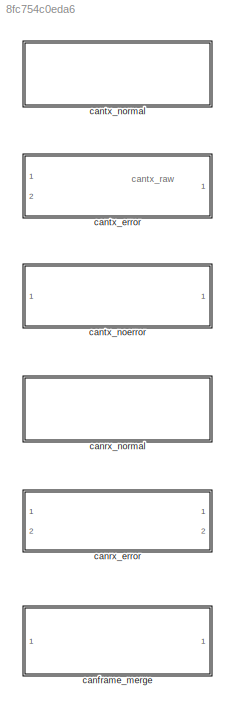
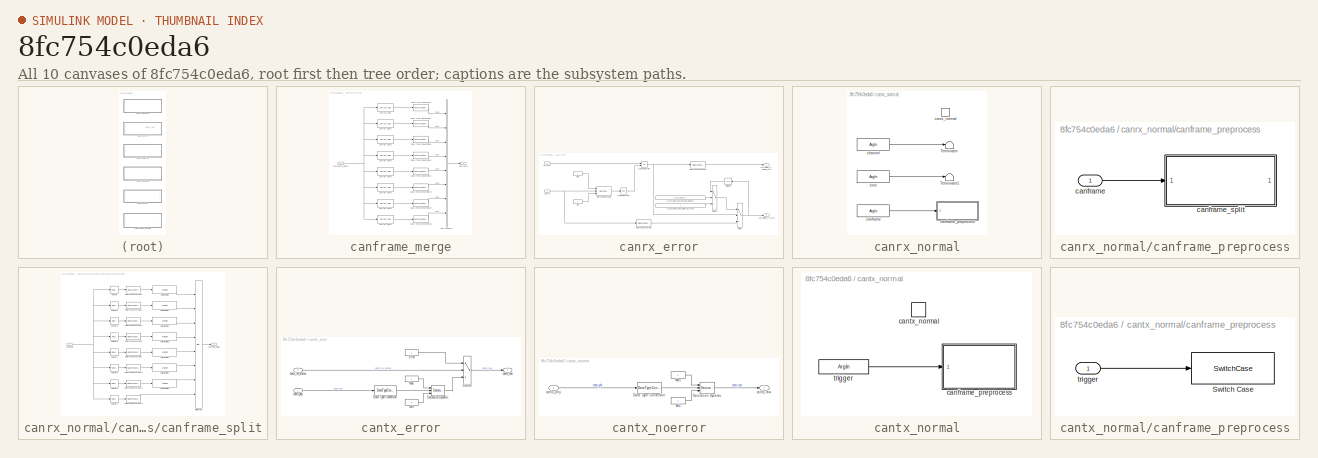
[diagram: thumbnail index - all 10 canvases of the model, root first then tree order]
MODEL slx_8fc754c0eda6
KIND model
CONFIG AbsTol = auto
CONFIG EnableMultiTasking = off
CONFIG FixedStep = auto
CONFIG MaxStep = auto
CONFIG MinStep = auto
CONFIG RelTol = 1e-3
CONFIG SampleTimeConstraint = Unconstrained
CONFIG SolverName = VariableStepAuto
CONFIG StartTime = 0.0
CONFIG StopTime = 10.0
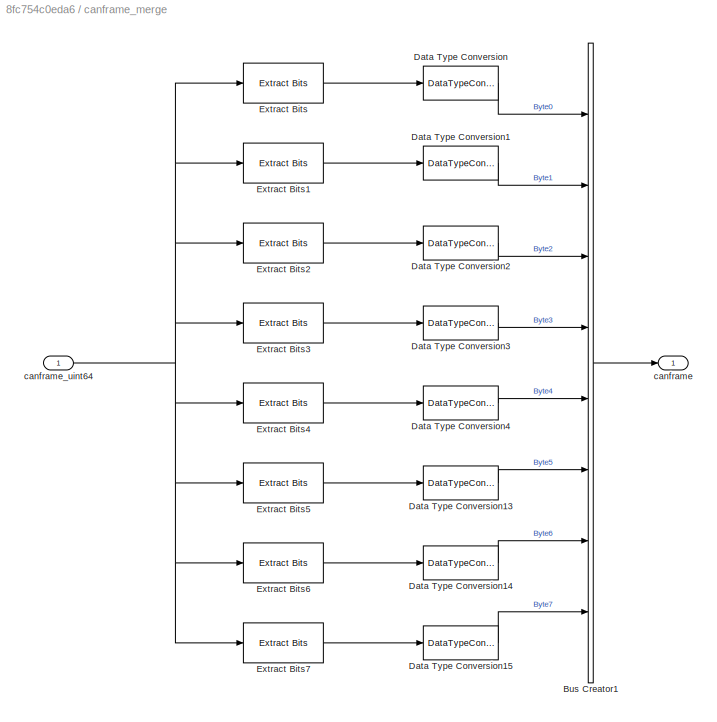
BLOCK [SubSystem] canframe_merge
  Ports = [1, 1]
  RTWSystemCode = Reusable function
  RequestExecContextInheritance = off
BLOCK [BusCreator] canframe_merge/Bus Creator1
  DisplayOption = bar
  InheritFromInputs = on
  Inputs = Byte0,Byte1,Byte2,Byte3,Byte4,Byte5,Byte6,Byte7
  NonVirtualBus = on
  OutDataTypeStr = Bus: canframe
  Ports = [8, 1]
BLOCK [DataTypeConversion] canframe_merge/Data Type Conversion
  ConvertRealWorld = Stored Integer (SI)
  OutDataTypeStr = uint8
  RndMeth = Floor
  SaturateOnIntegerOverflow = off
BLOCK [DataTypeConversion] canframe_merge/Data Type Conversion1
  ConvertRealWorld = Stored Integer (SI)
  OutDataTypeStr = uint8
  RndMeth = Floor
  SaturateOnIntegerOverflow = off
BLOCK [DataTypeConversion] canframe_merge/Data Type Conversion13
  ConvertRealWorld = Stored Integer (SI)
  OutDataTypeStr = uint8
  RndMeth = Floor
  SaturateOnIntegerOverflow = off
BLOCK [DataTypeConversion] canframe_merge/Data Type Conversion14
  ConvertRealWorld = Stored Integer (SI)
  OutDataTypeStr = uint8
  RndMeth = Floor
  SaturateOnIntegerOverflow = off
BLOCK [DataTypeConversion] canframe_merge/Data Type Conversion15
  ConvertRealWorld = Stored Integer (SI)
  OutDataTypeStr = uint8
  RndMeth = Floor
  SaturateOnIntegerOverflow = off
BLOCK [DataTypeConversion] canframe_merge/Data Type Conversion2
  ConvertRealWorld = Stored Integer (SI)
  OutDataTypeStr = uint8
  RndMeth = Floor
  SaturateOnIntegerOverflow = off
BLOCK [DataTypeConversion] canframe_merge/Data Type Conversion3
  ConvertRealWorld = Stored Integer (SI)
  OutDataTypeStr = uint8
  RndMeth = Floor
  SaturateOnIntegerOverflow = off
BLOCK [DataTypeConversion] canframe_merge/Data Type Conversion4
  ConvertRealWorld = Stored Integer (SI)
  OutDataTypeStr = uint8
  RndMeth = Floor
  SaturateOnIntegerOverflow = off
BLOCK [Reference] canframe_merge/Extract Bits  REF=simulink/Logic and Bit
Operations/Extract Bits
  Ports = [1, 1]
  SourceBlock = simulink/Logic and Bit\nOperations/Extract Bits
  SourceProductBaseCode = SL
  SourceType = Extract Bits
BLOCK [Reference] canframe_merge/Extract Bits1  REF=simulink/Logic and Bit
Operations/Extract Bits
  Ports = [1, 1]
  SourceBlock = simulink/Logic and Bit\nOperations/Extract Bits
  SourceProductBaseCode = SL
  SourceType = Extract Bits
BLOCK [Reference] canframe_merge/Extract Bits2  REF=simulink/Logic and Bit
Operations/Extract Bits
  Ports = [1, 1]
  SourceBlock = simulink/Logic and Bit\nOperations/Extract Bits
  SourceProductBaseCode = SL
  SourceType = Extract Bits
BLOCK [Reference] canframe_merge/Extract Bits3  REF=simulink/Logic and Bit
Operations/Extract Bits
  Ports = [1, 1]
  SourceBlock = simulink/Logic and Bit\nOperations/Extract Bits
  SourceProductBaseCode = SL
  SourceType = Extract Bits
BLOCK [Reference] canframe_merge/Extract Bits4  REF=simulink/Logic and Bit
Operations/Extract Bits
  Ports = [1, 1]
  SourceBlock = simulink/Logic and Bit\nOperations/Extract Bits
  SourceProductBaseCode = SL
  SourceType = Extract Bits
BLOCK [Reference] canframe_merge/Extract Bits5  REF=simulink/Logic and Bit
Operations/Extract Bits
  Ports = [1, 1]
  SourceBlock = simulink/Logic and Bit\nOperations/Extract Bits
  SourceProductBaseCode = SL
  SourceType = Extract Bits
BLOCK [Reference] canframe_merge/Extract Bits6  REF=simulink/Logic and Bit
Operations/Extract Bits
  Ports = [1, 1]
  SourceBlock = simulink/Logic and Bit\nOperations/Extract Bits
  SourceProductBaseCode = SL
  SourceType = Extract Bits
BLOCK [Reference] canframe_merge/Extract Bits7  REF=simulink/Logic and Bit
Operations/Extract Bits
  Ports = [1, 1]
  SourceBlock = simulink/Logic and Bit\nOperations/Extract Bits
  SourceProductBaseCode = SL
  SourceType = Extract Bits
BLOCK [Outport] canframe_merge/canframe
BLOCK [Inport] canframe_merge/canframe_uint64
BLOCK [SubSystem] canrx_error
  Ports = [2, 2]
  RequestExecContextInheritance = off
BLOCK [DataTypeConversion] canrx_error/Data Type Conversion
  ConvertRealWorld = Stored Integer (SI)
  RndMeth = Floor
  SaturateOnIntegerOverflow = off
BLOCK [DataTypeConversion] canrx_error/Data Type Conversion1
  ConvertRealWorld = Stored Integer (SI)
  RndMeth = Floor
  SaturateOnIntegerOverflow = off
BLOCK [Reference] canrx_error/Interval Test Dynamic  REF=simulink/Logic and Bit
Operations/Interval Test
Dynamic
  Ports = [3, 1]
  SourceBlock = simulink/Logic and Bit\nOperations/Interval Test\nDynamic
  SourceProductBaseCode = SL
  SourceType = Interval Test Dynamic
BLOCK [Constant] canrx_error/K_CAN_GMLAN_RX_DEFAULT_xxxx
  OutDataTypeStr = Inherit: Inherit via back propagation
BLOCK [Constant] canrx_error/K_CAN_GMLAN_RX_INVALID_SELECT
  OutDataTypeStr = Inherit: Inherit via back propagation
  Value = K_CAN_GMLAN_RX_INVALID_SELECT
BLOCK [Logic] canrx_error/Logical Operator
  AllPortsSameDT = off
  Operator = OR
  OutDataTypeStr = boolean
  Ports = [2, 1]
BLOCK [Logic] canrx_error/Logical Operator1
  AllPortsSameDT = off
  Operator = NOT
  OutDataTypeStr = boolean
  Ports = [1, 1]
BLOCK [Constant] canrx_error/Max
  OutDataTypeStr = Inherit: Inherit via back propagation
BLOCK [Constant] canrx_error/Min
  OutDataTypeStr = Inherit: Inherit via back propagation
BLOCK [Switch] canrx_error/Switch
  Criteria = u2 > Threshold
  InputSameDT = off
  SaturateOnIntegerOverflow = off
BLOCK [Switch] canrx_error/Switch1
  Criteria = u2 > Threshold
  InputSameDT = off
  SaturateOnIntegerOverflow = off
BLOCK [UnitDelay] canrx_error/Unit Delay
  HasFrameUpgradeWarning = on
  NameLocation = top
  SampleTime = -1
BLOCK [Outport] canrx_error/can_gmlan_rx_invalid_xxxx
BLOCK [Outport] canrx_error/can_gmlan_rx_xxxx
  Port = 2
BLOCK [Inport] canrx_error/can_rx
BLOCK [Inport] canrx_error/inv_xxxx
  Port = 2
BLOCK [SubSystem] canrx_normal
  Ports = [0, 0, 0, 1]
  RequestExecContextInheritance = off
  TreatAsAtomicUnit = on
BLOCK [Terminator] canrx_normal/Terminator
BLOCK [Terminator] canrx_normal/Terminator1
BLOCK [ArgIn] canrx_normal/canframe
  ArgumentName = canframe
  DisableCoverage = on
  OutDataTypeStr = uint8
  Port = 2
  PortDimensions = 8
BLOCK [SubSystem] canrx_normal/canframe_preprocess
  Ports = [1]
  RequestExecContextInheritance = off
BLOCK [Inport] canrx_normal/canframe_preprocess/canframe
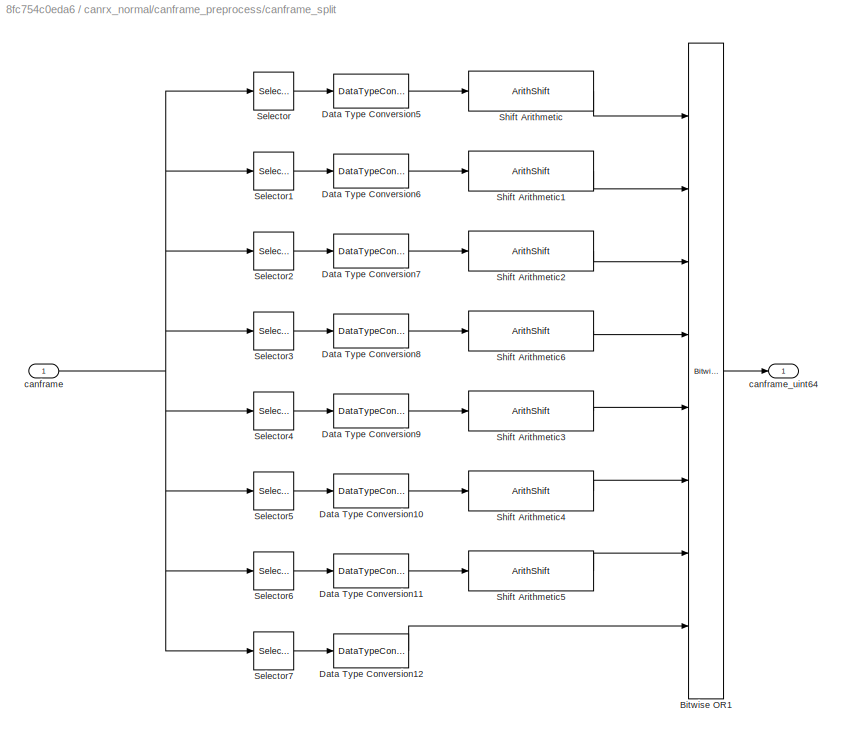
BLOCK [SubSystem] canrx_normal/canframe_preprocess/canframe_split
  Ports = [1, 1]
  RTWSystemCode = Reusable function
  RequestExecContextInheritance = off
BLOCK [Reference] canrx_normal/canframe_preprocess/canframe_split/Bitwise OR1  REF=simulink/Logic and Bit
Operations/Bitwise
Operator
  Ports = [8, 1]
  SourceBlock = simulink/Logic and Bit\nOperations/Bitwise\nOperator
  SourceProductBaseCode = SL
  SourceType = Bitwise Operator
BLOCK [DataTypeConversion] canrx_normal/canframe_preprocess/canframe_split/Data Type Conversion10
  ConvertRealWorld = Stored Integer (SI)
  OutDataTypeStr = uint64
  RndMeth = Floor
  SaturateOnIntegerOverflow = off
BLOCK [DataTypeConversion] canrx_normal/canframe_preprocess/canframe_split/Data Type Conversion11
  ConvertRealWorld = Stored Integer (SI)
  OutDataTypeStr = uint64
  RndMeth = Floor
  SaturateOnIntegerOverflow = off
BLOCK [DataTypeConversion] canrx_normal/canframe_preprocess/canframe_split/Data Type Conversion12
  ConvertRealWorld = Stored Integer (SI)
  OutDataTypeStr = uint64
  RndMeth = Floor
  SaturateOnIntegerOverflow = off
BLOCK [DataTypeConversion] canrx_normal/canframe_preprocess/canframe_split/Data Type Conversion5
  ConvertRealWorld = Stored Integer (SI)
  OutDataTypeStr = uint64
  RndMeth = Floor
  SaturateOnIntegerOverflow = off
BLOCK [DataTypeConversion] canrx_normal/canframe_preprocess/canframe_split/Data Type Conversion6
  ConvertRealWorld = Stored Integer (SI)
  OutDataTypeStr = uint64
  RndMeth = Floor
  SaturateOnIntegerOverflow = off
BLOCK [DataTypeConversion] canrx_normal/canframe_preprocess/canframe_split/Data Type Conversion7
  ConvertRealWorld = Stored Integer (SI)
  OutDataTypeStr = uint64
  RndMeth = Floor
  SaturateOnIntegerOverflow = off
BLOCK [DataTypeConversion] canrx_normal/canframe_preprocess/canframe_split/Data Type Conversion8
  ConvertRealWorld = Stored Integer (SI)
  OutDataTypeStr = uint64
  RndMeth = Floor
  SaturateOnIntegerOverflow = off
BLOCK [DataTypeConversion] canrx_normal/canframe_preprocess/canframe_split/Data Type Conversion9
  ConvertRealWorld = Stored Integer (SI)
  OutDataTypeStr = uint64
  RndMeth = Floor
  SaturateOnIntegerOverflow = off
BLOCK [Selector] canrx_normal/canframe_preprocess/canframe_split/Selector
  IndexMode = Zero-based
  IndexOptions = Index vector (dialog)
  Indices = 0
  InputPortWidth = 8
  OutputSizes = 1
  Ports = [1, 1]
BLOCK [Selector] canrx_normal/canframe_preprocess/canframe_split/Selector1
  IndexMode = Zero-based
  IndexOptions = Index vector (dialog)
  Indices = 1
  InputPortWidth = 8
  OutputSizes = 1
  Ports = [1, 1]
BLOCK [Selector] canrx_normal/canframe_preprocess/canframe_split/Selector2
  IndexMode = Zero-based
  IndexOptions = Index vector (dialog)
  Indices = 2
  InputPortWidth = 8
  OutputSizes = 1
  Ports = [1, 1]
BLOCK [Selector] canrx_normal/canframe_preprocess/canframe_split/Selector3
  IndexMode = Zero-based
  IndexOptions = Index vector (dialog)
  Indices = 3
  InputPortWidth = 8
  OutputSizes = 1
  Ports = [1, 1]
BLOCK [Selector] canrx_normal/canframe_preprocess/canframe_split/Selector4
  IndexMode = Zero-based
  IndexOptions = Index vector (dialog)
  Indices = 4
  InputPortWidth = 8
  OutputSizes = 1
  Ports = [1, 1]
BLOCK [Selector] canrx_normal/canframe_preprocess/canframe_split/Selector5
  IndexMode = Zero-based
  IndexOptions = Index vector (dialog)
  Indices = 5
  InputPortWidth = 8
  OutputSizes = 1
  Ports = [1, 1]
BLOCK [Selector] canrx_normal/canframe_preprocess/canframe_split/Selector6
  IndexMode = Zero-based
  IndexOptions = Index vector (dialog)
  Indices = 6
  InputPortWidth = 8
  OutputSizes = 1
  Ports = [1, 1]
BLOCK [Selector] canrx_normal/canframe_preprocess/canframe_split/Selector7
  IndexMode = Zero-based
  IndexOptions = Index vector (dialog)
  Indices = 7
  InputPortWidth = 8
  OutputSizes = 1
  Ports = [1, 1]
BLOCK [ArithShift] canrx_normal/canframe_preprocess/canframe_split/Shift Arithmetic
  BitShiftDirection = Left
  BitShiftNumber = 56
  DiagnosticForOORShift = Error
  InputPortMap = u0
  Ports = [1, 1]
BLOCK [ArithShift] canrx_normal/canframe_preprocess/canframe_split/Shift Arithmetic1
  BitShiftDirection = Left
  BitShiftNumber = 48
  DiagnosticForOORShift = Error
  InputPortMap = u0
  Ports = [1, 1]
BLOCK [ArithShift] canrx_normal/canframe_preprocess/canframe_split/Shift Arithmetic2
  BitShiftDirection = Left
  BitShiftNumber = 40
  DiagnosticForOORShift = Error
  InputPortMap = u0
  Ports = [1, 1]
BLOCK [ArithShift] canrx_normal/canframe_preprocess/canframe_split/Shift Arithmetic3
  BitShiftDirection = Left
  BitShiftNumber = 24
  DiagnosticForOORShift = Error
  InputPortMap = u0
  Ports = [1, 1]
BLOCK [ArithShift] canrx_normal/canframe_preprocess/canframe_split/Shift Arithmetic4
  BitShiftDirection = Left
  BitShiftNumber = 16
  DiagnosticForOORShift = Error
  InputPortMap = u0
  Ports = [1, 1]
BLOCK [ArithShift] canrx_normal/canframe_preprocess/canframe_split/Shift Arithmetic5
  BitShiftDirection = Left
  BitShiftNumber = 8
  DiagnosticForOORShift = Error
  InputPortMap = u0
  Ports = [1, 1]
BLOCK [ArithShift] canrx_normal/canframe_preprocess/canframe_split/Shift Arithmetic6
  BitShiftDirection = Left
  BitShiftNumber = 32
  DiagnosticForOORShift = Error
  InputPortMap = u0
  Ports = [1, 1]
BLOCK [Inport] canrx_normal/canframe_preprocess/canframe_split/canframe
BLOCK [Outport] canrx_normal/canframe_preprocess/canframe_split/canframe_uint64
BLOCK [TriggerPort] canrx_normal/canrx_normal
  FunctionName = cantx_normal
  FunctionVisibility = scoped
  IsSimulinkFunction = on
  Ports = []
  StatesWhenEnabling = held
  TriggerType = function-call
  VariantControl = (inherit)
BLOCK [ArgIn] canrx_normal/channel
  ArgumentName = channel
  DisableCoverage = on
  OutDataTypeStr = uint64
BLOCK [ArgIn] canrx_normal/time
  ArgumentName = time
  DisableCoverage = on
  OutDataTypeStr = uint64
  Port = 3
BLOCK [SubSystem] cantx_error
  Ports = [2, 1]
  RequestExecContextInheritance = off
BLOCK [DataTypeConversion] cantx_error/Data Type Conversion
  ConvertRealWorld = Stored Integer (SI)
  RndMeth = Floor
  SaturateOnIntegerOverflow = off
BLOCK [Constant] cantx_error/Error
  OutDataTypeStr = Inherit: Inherit via back propagation
BLOCK [Constant] cantx_error/Max
  OutDataTypeStr = Inherit: Inherit via back propagation
BLOCK [Constant] cantx_error/Min
  OutDataTypeStr = Inherit: Inherit via back propagation
BLOCK [Reference] cantx_error/Saturation Dynamic  REF=simulink/Discontinuities/Saturation
Dynamic
  Ports = [3, 1]
  SourceBlock = simulink/Discontinuities/Saturation\nDynamic
  SourceProductBaseCode = SL
  SourceType = Saturation Dynamic
BLOCK [Switch] cantx_error/Switch
  Criteria = u2 > Threshold
  InputSameDT = off
  SaturateOnIntegerOverflow = off
BLOCK [Inport] cantx_error/cantx_inv_status
  Port = 2
BLOCK [Inport] cantx_error/cantx_phy
BLOCK [Outport] cantx_error/cantx_raw
BLOCK [SubSystem] cantx_noerror
  Ports = [1, 1]
  RequestExecContextInheritance = off
BLOCK [DataTypeConversion] cantx_noerror/Data Type Conversion
  ConvertRealWorld = Stored Integer (SI)
  RndMeth = Floor
  SaturateOnIntegerOverflow = off
BLOCK [Constant] cantx_noerror/Max
  OutDataTypeStr = Inherit: Inherit via back propagation
BLOCK [Constant] cantx_noerror/Min
  OutDataTypeStr = Inherit: Inherit via back propagation
BLOCK [Reference] cantx_noerror/Saturation Dynamic  REF=simulink/Discontinuities/Saturation
Dynamic
  Ports = [3, 1]
  SourceBlock = simulink/Discontinuities/Saturation\nDynamic
  SourceProductBaseCode = SL
  SourceType = Saturation Dynamic
BLOCK [Inport] cantx_noerror/cantx_phy
BLOCK [Outport] cantx_noerror/cantx_raw
BLOCK [SubSystem] cantx_normal
  Ports = [0, 0, 0, 1]
  RequestExecContextInheritance = off
  TreatAsAtomicUnit = on
BLOCK [SubSystem] cantx_normal/canframe_preprocess
  Ports = [1]
  RequestExecContextInheritance = off
BLOCK [SwitchCase] cantx_normal/canframe_preprocess/Switch Case
  CaseConditions = {0}
  Ports = [1, 1]
  ShowDefaultCase = off
BLOCK [Inport] cantx_normal/canframe_preprocess/trigger
BLOCK [TriggerPort] cantx_normal/cantx_normal
  FunctionName = cantx_normal
  FunctionVisibility = scoped
  IsSimulinkFunction = on
  Ports = []
  StatesWhenEnabling = held
  TriggerType = function-call
  VariantControl = (inherit)
BLOCK [ArgIn] cantx_normal/trigger
  ArgumentName = trigger
  DisableCoverage = on
ANNOTATION (root): cantx_raw
LINE canframe_merge/Bus Creator1:1 -> canframe_merge/canframe:1
LINE canframe_merge/Data Type Conversion13:1 -> canframe_merge/Bus Creator1:6
LINE canframe_merge/Data Type Conversion14:1 -> canframe_merge/Bus Creator1:7
LINE canframe_merge/Data Type Conversion15:1 -> canframe_merge/Bus Creator1:8
LINE canframe_merge/Data Type Conversion1:1 -> canframe_merge/Bus Creator1:2
LINE canframe_merge/Data Type Conversion2:1 -> canframe_merge/Bus Creator1:3
LINE canframe_merge/Data Type Conversion3:1 -> canframe_merge/Bus Creator1:4
LINE canframe_merge/Data Type Conversion4:1 -> canframe_merge/Bus Creator1:5
LINE canframe_merge/Data Type Conversion:1 -> canframe_merge/Bus Creator1:1
LINE canframe_merge/Extract Bits1:1 -> canframe_merge/Data Type Conversion1:1
LINE canframe_merge/Extract Bits2:1 -> canframe_merge/Data Type Conversion2:1
LINE canframe_merge/Extract Bits3:1 -> canframe_merge/Data Type Conversion3:1
LINE canframe_merge/Extract Bits4:1 -> canframe_merge/Data Type Conversion4:1
LINE canframe_merge/Extract Bits5:1 -> canframe_merge/Data Type Conversion13:1
LINE canframe_merge/Extract Bits6:1 -> canframe_merge/Data Type Conversion14:1
LINE canframe_merge/Extract Bits7:1 -> canframe_merge/Data Type Conversion15:1
LINE canframe_merge/Extract Bits:1 -> canframe_merge/Data Type Conversion:1
NET canframe_merge/canframe_uint64:1 -> canframe_merge/Extract Bits1:1, canframe_merge/Extract Bits2:1, canframe_merge/Extract Bits3:1, canframe_merge/Extract Bits4:1, canframe_merge/Extract Bits5:1, canframe_merge/Extract Bits6:1, canframe_merge/Extract Bits7:1, canframe_merge/Extract Bits:1
LINE canrx_error/Data Type Conversion1:1 -> canrx_error/can_gmlan_rx_invalid_xxxx:1
LINE canrx_error/Data Type Conversion:1 -> canrx_error/Switch:3
LINE canrx_error/Interval Test Dynamic:1 -> canrx_error/Logical Operator1:1
LINE canrx_error/K_CAN_GMLAN_RX_DEFAULT_xxxx:1 -> canrx_error/Switch1:3
LINE canrx_error/K_CAN_GMLAN_RX_INVALID_SELECT:1 -> canrx_error/Switch1:2
LINE canrx_error/Logical Operator1:1 -> canrx_error/Logical Operator:2
NET canrx_error/Logical Operator:1 -> canrx_error/Data Type Conversion1:1, canrx_error/Switch:2
LINE canrx_error/Max:1 -> canrx_error/Interval Test Dynamic:1
LINE canrx_error/Min:1 -> canrx_error/Interval Test Dynamic:3
LINE canrx_error/Switch1:1 -> canrx_error/Switch:1
NET canrx_error/Switch:1 -> canrx_error/Unit Delay:1, canrx_error/can_gmlan_rx_xxxx:1
LINE canrx_error/Unit Delay:1 -> canrx_error/Switch1:1
NET canrx_error/can_rx:1 -> canrx_error/Data Type Conversion:1, canrx_error/Interval Test Dynamic:2
LINE canrx_error/inv_xxxx:1 -> canrx_error/Logical Operator:1
LINE canrx_normal/canframe:1 -> canrx_normal/canframe_preprocess:1
LINE canrx_normal/canframe_preprocess/canframe:1 -> canrx_normal/canframe_preprocess/canframe_split:1
LINE canrx_normal/canframe_preprocess/canframe_split/Bitwise OR1:1 -> canrx_normal/canframe_preprocess/canframe_split/canframe_uint64:1
LINE canrx_normal/canframe_preprocess/canframe_split/Data Type Conversion10:1 -> canrx_normal/canframe_preprocess/canframe_split/Shift Arithmetic4:1
LINE canrx_normal/canframe_preprocess/canframe_split/Data Type Conversion11:1 -> canrx_normal/canframe_preprocess/canframe_split/Shift Arithmetic5:1
LINE canrx_normal/canframe_preprocess/canframe_split/Data Type Conversion12:1 -> canrx_normal/canframe_preprocess/canframe_split/Bitwise OR1:8
LINE canrx_normal/canframe_preprocess/canframe_split/Data Type Conversion5:1 -> canrx_normal/canframe_preprocess/canframe_split/Shift Arithmetic:1
LINE canrx_normal/canframe_preprocess/canframe_split/Data Type Conversion6:1 -> canrx_normal/canframe_preprocess/canframe_split/Shift Arithmetic1:1
LINE canrx_normal/canframe_preprocess/canframe_split/Data Type Conversion7:1 -> canrx_normal/canframe_preprocess/canframe_split/Shift Arithmetic2:1
LINE canrx_normal/canframe_preprocess/canframe_split/Data Type Conversion8:1 -> canrx_normal/canframe_preprocess/canframe_split/Shift Arithmetic6:1
LINE canrx_normal/canframe_preprocess/canframe_split/Data Type Conversion9:1 -> canrx_normal/canframe_preprocess/canframe_split/Shift Arithmetic3:1
LINE canrx_normal/canframe_preprocess/canframe_split/Selector1:1 -> canrx_normal/canframe_preprocess/canframe_split/Data Type Conversion6:1
LINE canrx_normal/canframe_preprocess/canframe_split/Selector2:1 -> canrx_normal/canframe_preprocess/canframe_split/Data Type Conversion7:1
LINE canrx_normal/canframe_preprocess/canframe_split/Selector3:1 -> canrx_normal/canframe_preprocess/canframe_split/Data Type Conversion8:1
LINE canrx_normal/canframe_preprocess/canframe_split/Selector4:1 -> canrx_normal/canframe_preprocess/canframe_split/Data Type Conversion9:1
LINE canrx_normal/canframe_preprocess/canframe_split/Selector5:1 -> canrx_normal/canframe_preprocess/canframe_split/Data Type Conversion10:1
LINE canrx_normal/canframe_preprocess/canframe_split/Selector6:1 -> canrx_normal/canframe_preprocess/canframe_split/Data Type Conversion11:1
LINE canrx_normal/canframe_preprocess/canframe_split/Selector7:1 -> canrx_normal/canframe_preprocess/canframe_split/Data Type Conversion12:1
LINE canrx_normal/canframe_preprocess/canframe_split/Selector:1 -> canrx_normal/canframe_preprocess/canframe_split/Data Type Conversion5:1
LINE canrx_normal/canframe_preprocess/canframe_split/Shift Arithmetic1:1 -> canrx_normal/canframe_preprocess/canframe_split/Bitwise OR1:2
LINE canrx_normal/canframe_preprocess/canframe_split/Shift Arithmetic2:1 -> canrx_normal/canframe_preprocess/canframe_split/Bitwise OR1:3
LINE canrx_normal/canframe_preprocess/canframe_split/Shift Arithmetic3:1 -> canrx_normal/canframe_preprocess/canframe_split/Bitwise OR1:5
LINE canrx_normal/canframe_preprocess/canframe_split/Shift Arithmetic4:1 -> canrx_normal/canframe_preprocess/canframe_split/Bitwise OR1:6
LINE canrx_normal/canframe_preprocess/canframe_split/Shift Arithmetic5:1 -> canrx_normal/canframe_preprocess/canframe_split/Bitwise OR1:7
LINE canrx_normal/canframe_preprocess/canframe_split/Shift Arithmetic6:1 -> canrx_normal/canframe_preprocess/canframe_split/Bitwise OR1:4
LINE canrx_normal/canframe_preprocess/canframe_split/Shift Arithmetic:1 -> canrx_normal/canframe_preprocess/canframe_split/Bitwise OR1:1
NET canrx_normal/canframe_preprocess/canframe_split/canframe:1 -> canrx_normal/canframe_preprocess/canframe_split/Selector1:1, canrx_normal/canframe_preprocess/canframe_split/Selector2:1, canrx_normal/canframe_preprocess/canframe_split/Selector3:1, canrx_normal/canframe_preprocess/canframe_split/Selector4:1, canrx_normal/canframe_preprocess/canframe_split/Selector5:1, canrx_normal/canframe_preprocess/canframe_split/Selector6:1, canrx_normal/canframe_preprocess/canframe_split/Selector7:1, canrx_normal/canframe_preprocess/canframe_split/Selector:1
LINE canrx_normal/channel:1 -> canrx_normal/Terminator:1
LINE canrx_normal/time:1 -> canrx_normal/Terminator1:1
LINE cantx_error/Data Type Conversion:1 -> cantx_error/Saturation Dynamic:2
LINE cantx_error/Error:1 -> cantx_error/Switch:1
LINE cantx_error/Max:1 -> cantx_error/Saturation Dynamic:1
LINE cantx_error/Min:1 -> cantx_error/Saturation Dynamic:3
LINE cantx_error/Saturation Dynamic:1 -> cantx_error/Switch:3
LINE cantx_error/Switch:1 -> cantx_error/cantx_raw:1
LINE cantx_error/cantx_inv_status:1 -> cantx_error/Switch:2
LINE cantx_error/cantx_phy:1 -> cantx_error/Data Type Conversion:1
LINE cantx_noerror/Data Type Conversion:1 -> cantx_noerror/Saturation Dynamic:2
LINE cantx_noerror/Max:1 -> cantx_noerror/Saturation Dynamic:1
LINE cantx_noerror/Min:1 -> cantx_noerror/Saturation Dynamic:3
LINE cantx_noerror/Saturation Dynamic:1 -> cantx_noerror/cantx_raw:1
LINE cantx_noerror/cantx_phy:1 -> cantx_noerror/Data Type Conversion:1
LINE cantx_normal/canframe_preprocess/trigger:1 -> cantx_normal/canframe_preprocess/Switch Case:1
LINE cantx_normal/trigger:1 -> cantx_normal/canframe_preprocess:1
note: NET lines group one-source signal fan-out (src -> all destinations, sorted); 1:1 wires keep LINE
